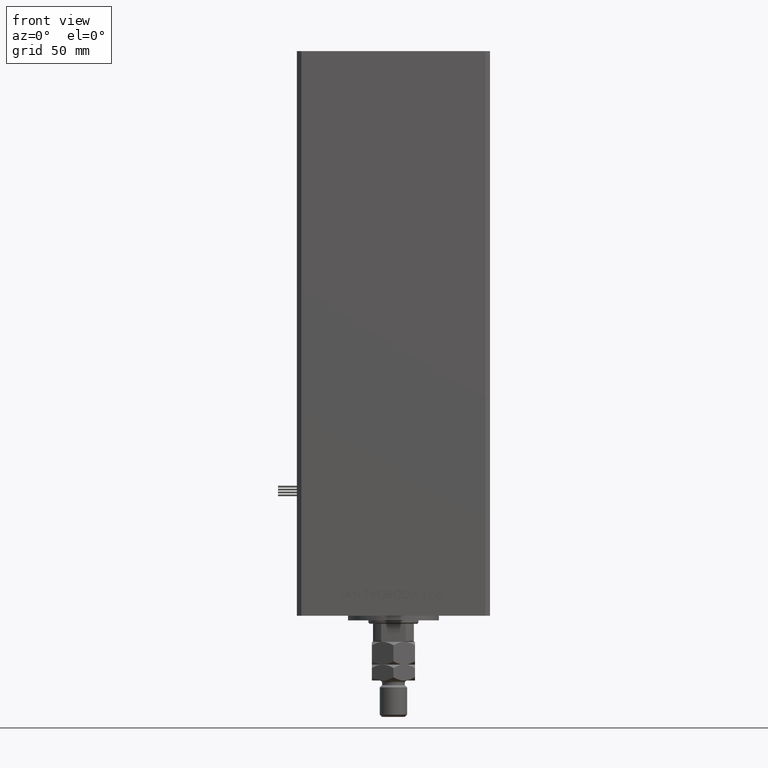
[diagram: clean part render]
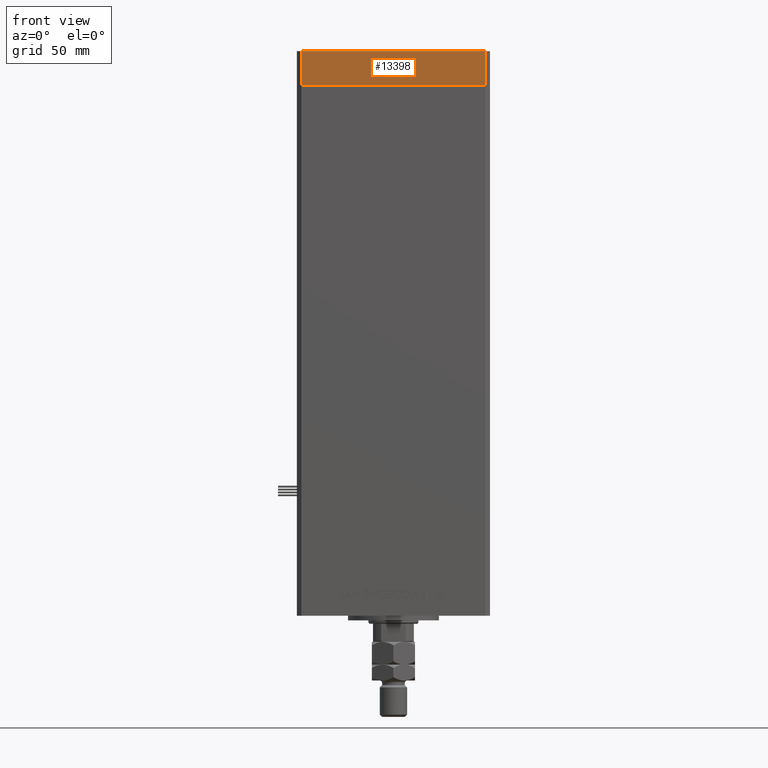
[diagram: same view with one face highlighted and labeled with its STEP entity id]
A machine part, front view. The second image highlights one B-rep face of the part: STEP entity #13398.
In plain terms, the highlighted planar face has unit normal (0, -1, 0).
Its self-contained STEP definition (entity closure, byte-faithful):
#1772 = DIRECTION ( 'NONE',  ( 0.000000000000000000, 0.000000000000000000, 1.000000000000000000 ) ) ;
#4950 = DIRECTION ( 'NONE',  ( 1.000000000000000000, 1.713307136767217096E-16, 0.000000000000000000 ) ) ;
#5955 = LINE ( 'NONE', #10028, #30893 ) ;
#8251 = DIRECTION ( 'NONE',  ( 1.000000000000000000, 1.713307136767217096E-16, 0.000000000000000000 ) ) ;
#9063 = FACE_OUTER_BOUND ( 'NONE', #34130, .T. ) ;
#10028 = CARTESIAN_POINT ( 'NONE',  ( -40.49999999999999289, -37.50000000000002132, -15.00000000000000000 ) ) ;
#10070 = VECTOR ( 'NONE', #27682, 1000.000000000000000 ) ;
#13398 = ADVANCED_FACE ( 'NONE', ( #9063 ), #37495, .T. ) ;
#13428 = VECTOR ( 'NONE', #1772, 1000.000000000000000 ) ;
#13806 = VERTEX_POINT ( 'NONE', #45271 ) ;
#14252 = CARTESIAN_POINT ( 'NONE',  ( -40.49999999999999289, -37.50000000000002132, -15.00000000000000000 ) ) ;
#17771 = DIRECTION ( 'NONE',  ( 1.000000000000000000, 1.713307136767217096E-16, 0.000000000000000000 ) ) ;
#19274 = CARTESIAN_POINT ( 'NONE',  ( -40.49999999999999289, -37.50000000000002132, 0.000000000000000000 ) ) ;
#19835 = VECTOR ( 'NONE', #17771, 1000.000000000000000 ) ;
#21248 = DIRECTION ( 'NONE',  ( 1.713307136767217096E-16, -1.000000000000000000, 0.000000000000000000 ) ) ;
#22305 = EDGE_CURVE ( 'NONE', #46138, #13806, #42933, .T. ) ;
#23059 = ORIENTED_EDGE ( 'NONE', *, *, #35252, .F. ) ;
#26440 = LINE ( 'NONE', #14252, #10070 ) ;
#26676 = CARTESIAN_POINT ( 'NONE',  ( 40.50000000000000000, -37.50000000000000711, -15.00000000000000000 ) ) ;
#27306 = EDGE_CURVE ( 'NONE', #41309, #35957, #26440, .T. ) ;
#27404 = ORIENTED_EDGE ( 'NONE', *, *, #28909, .T. ) ;
#27682 = DIRECTION ( 'NONE',  ( 0.000000000000000000, 0.000000000000000000, 1.000000000000000000 ) ) ;
#28909 = EDGE_CURVE ( 'NONE', #41309, #46138, #5955, .T. ) ;
#30633 = ORIENTED_EDGE ( 'NONE', *, *, #22305, .T. ) ;
#30893 = VECTOR ( 'NONE', #4950, 1000.000000000000000 ) ;
#33643 = ORIENTED_EDGE ( 'NONE', *, *, #27306, .F. ) ;
#34130 = EDGE_LOOP ( 'NONE', ( #23059, #33643, #27404, #30633 ) ) ;
#35252 = EDGE_CURVE ( 'NONE', #35957, #13806, #43197, .T. ) ;
#35957 = VERTEX_POINT ( 'NONE', #45381 ) ;
#37495 = PLANE ( 'NONE',  #51974 ) ;
#38031 = CARTESIAN_POINT ( 'NONE',  ( -40.49999999999999289, -37.50000000000002132, -15.00000000000000000 ) ) ;
#39832 = CARTESIAN_POINT ( 'NONE',  ( 40.50000000000000000, -37.50000000000000711, -15.00000000000000000 ) ) ;
#41309 = VERTEX_POINT ( 'NONE', #42982 ) ;
#42933 = LINE ( 'NONE', #26676, #13428 ) ;
#42982 = CARTESIAN_POINT ( 'NONE',  ( -40.49999999999999289, -37.50000000000002132, -15.00000000000000000 ) ) ;
#43197 = LINE ( 'NONE', #19274, #19835 ) ;
#45271 = CARTESIAN_POINT ( 'NONE',  ( 40.50000000000000000, -37.50000000000000711, 0.000000000000000000 ) ) ;
#45381 = CARTESIAN_POINT ( 'NONE',  ( -40.49999999999999289, -37.50000000000002132, 0.000000000000000000 ) ) ;
#46138 = VERTEX_POINT ( 'NONE', #39832 ) ;
#51974 = AXIS2_PLACEMENT_3D ( 'NONE', #38031, #21248, #8251 ) ;